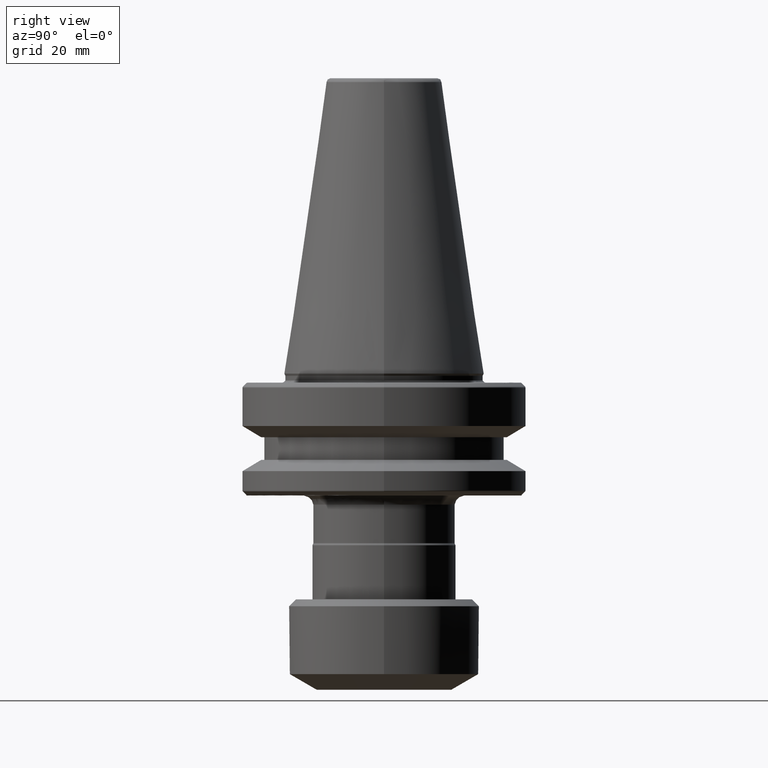
[diagram: clean part render]
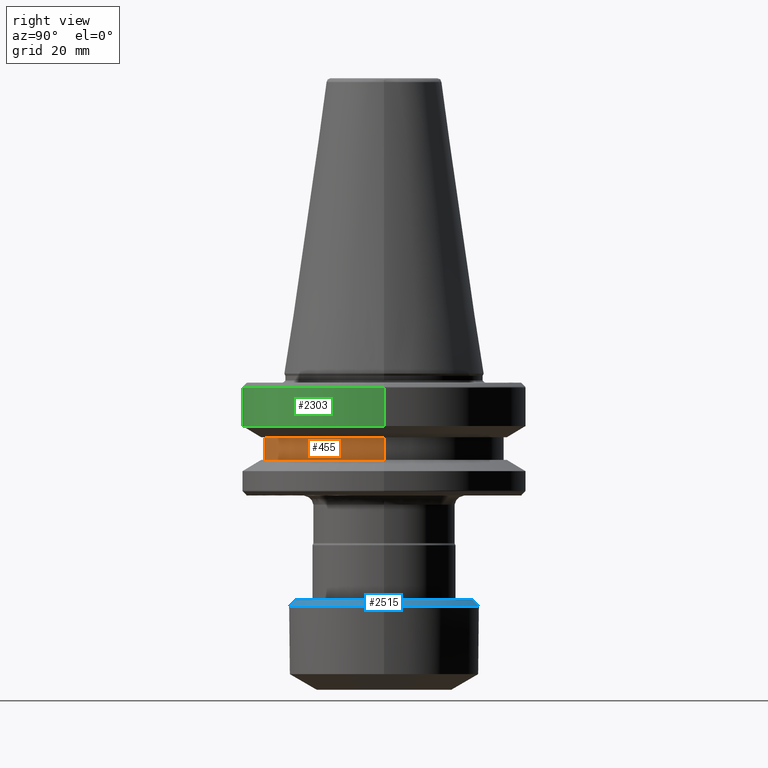
[diagram: same view with three faces highlighted in distinct colors, each labeled with its STEP entity id]
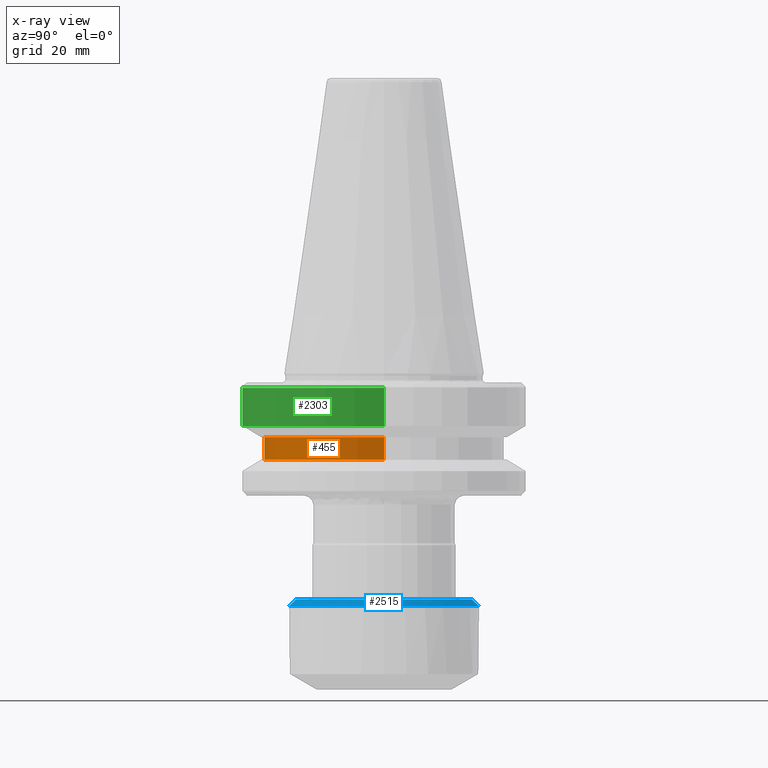
[diagram: x-ray of the same camera — body ghosted, the three highlighted faces saturated]
A machine part, right view with three faces highlighted in distinct colors.
The next image is the same camera in x-ray (body ghosted, the three faces saturated) — at least one of them is partly hidden behind the body in this view.
Their STEP definitions:

[orange] entity #455 — the highlighted cylindrical surface (partial cylindrical patch) has radius 26.5 mm, axis along (0, 0, 1).
#10 = VECTOR ( 'NONE', #2133, 1000.000000000000000 ) ;
#24 = LINE ( 'NONE', #2121, #10 ) ;
#88 = VERTEX_POINT ( 'NONE', #2228 ) ;
#127 = DIRECTION ( 'NONE',  ( 0.0000000000000000000, 0.0000000000000000000, 1.000000000000000000 ) ) ;
#157 = DIRECTION ( 'NONE',  ( 1.000000000000000000, 0.0000000000000000000, 0.0000000000000000000 ) ) ;
#173 = CIRCLE ( 'NONE', #371, 26.49999999999999600 ) ;
#371 = AXIS2_PLACEMENT_3D ( 'NONE', #1341, #2650, #1519 ) ;
#374 = VECTOR ( 'NONE', #2555, 1000.000000000000000 ) ;
#392 = LINE ( 'NONE', #1437, #374 ) ;
#455 = ADVANCED_FACE ( 'NONE', ( #662 ), #667, .T. ) ;
#662 = FACE_OUTER_BOUND ( 'NONE', #1276, .T. ) ;
#667 = CYLINDRICAL_SURFACE ( 'NONE', #1314, 26.49999999999999600 ) ;
#716 = DIRECTION ( 'NONE',  ( 0.0000000000000000000, 0.0000000000000000000, 1.000000000000000000 ) ) ;
#1056 = ORIENTED_EDGE ( 'NONE', *, *, #2558, .F. ) ;
#1143 = ORIENTED_EDGE ( 'NONE', *, *, #2682, .F. ) ;
#1162 = CARTESIAN_POINT ( 'NONE',  ( 88.23341380625029700, 81.23534176582239800, 52.96793828204410200 ) ) ;
#1209 = CARTESIAN_POINT ( 'NONE',  ( 88.23341380625029700, 81.23534176582239800, 47.96793828204409500 ) ) ;
#1210 = VERTEX_POINT ( 'NONE', #1209 ) ;
#1276 = EDGE_LOOP ( 'NONE', ( #1056, #2479, #1635, #1143 ) ) ;
#1314 = AXIS2_PLACEMENT_3D ( 'NONE', #1622, #127, #157 ) ;
#1341 = CARTESIAN_POINT ( 'NONE',  ( 61.73341380625030400, 81.23534176582239800, 47.96793828204409500 ) ) ;
#1437 = CARTESIAN_POINT ( 'NONE',  ( 88.23341380625029700, 81.23534176582239800, 47.96793828204409500 ) ) ;
#1468 = CARTESIAN_POINT ( 'NONE',  ( 35.23341380625029700, 81.23534176582239800, 52.96793828204410200 ) ) ;
#1519 = DIRECTION ( 'NONE',  ( 1.000000000000000000, 0.0000000000000000000, 0.0000000000000000000 ) ) ;
#1589 = VERTEX_POINT ( 'NONE', #1468 ) ;
#1608 = EDGE_CURVE ( 'NONE', #1210, #2533, #392, .T. ) ;
#1622 = CARTESIAN_POINT ( 'NONE',  ( 61.73341380625030400, 81.23534176582239800, 47.96793828204409500 ) ) ;
#1635 = ORIENTED_EDGE ( 'NONE', *, *, #1608, .T. ) ;
#1830 = CIRCLE ( 'NONE', #2306, 26.49999999999999600 ) ;
#1966 = CARTESIAN_POINT ( 'NONE',  ( 61.73341380625030400, 81.23534176582239800, 52.96793828204410200 ) ) ;
#2121 = CARTESIAN_POINT ( 'NONE',  ( 35.23341380625030400, 81.23534176582239800, 47.96793828204409500 ) ) ;
#2133 = DIRECTION ( 'NONE',  ( 0.0000000000000000000, 0.0000000000000000000, 1.000000000000000000 ) ) ;
#2153 = DIRECTION ( 'NONE',  ( 1.000000000000000000, 0.0000000000000000000, 0.0000000000000000000 ) ) ;
#2193 = EDGE_CURVE ( 'NONE', #1210, #88, #173, .T. ) ;
#2228 = CARTESIAN_POINT ( 'NONE',  ( 35.23341380625029700, 81.23534176582239800, 47.96793828204409500 ) ) ;
#2306 = AXIS2_PLACEMENT_3D ( 'NONE', #1966, #716, #2153 ) ;
#2479 = ORIENTED_EDGE ( 'NONE', *, *, #2193, .F. ) ;
#2533 = VERTEX_POINT ( 'NONE', #1162 ) ;
#2555 = DIRECTION ( 'NONE',  ( 0.0000000000000000000, 0.0000000000000000000, 1.000000000000000000 ) ) ;
#2558 = EDGE_CURVE ( 'NONE', #88, #1589, #24, .T. ) ;
#2650 = DIRECTION ( 'NONE',  ( -0.0000000000000000000, -0.0000000000000000000, -1.000000000000000000 ) ) ;
#2682 = EDGE_CURVE ( 'NONE', #1589, #2533, #1830, .T. ) ;

[blue] entity #2515 — the highlighted conical surface has half-angle 45 deg.
#16 = CONICAL_SURFACE ( 'NONE', #1142, 19.50000000000000400, 0.7853981633974488300 ) ;
#37 = EDGE_CURVE ( 'NONE', #2685, #1561, #1687, .T. ) ;
#41 = FACE_OUTER_BOUND ( 'NONE', #826, .T. ) ;
#42 = CARTESIAN_POINT ( 'NONE',  ( 61.73341380625030400, 81.23534176582239800, 15.56793828204414100 ) ) ;
#68 = CIRCLE ( 'NONE', #154, 20.99999999999998900 ) ;
#142 = DIRECTION ( 'NONE',  ( 0.0000000000000000000, 0.0000000000000000000, 1.000000000000000000 ) ) ;
#154 = AXIS2_PLACEMENT_3D ( 'NONE', #1507, #142, #1720 ) ;
#171 = CARTESIAN_POINT ( 'NONE',  ( 61.73341380625030400, 81.23534176582239800, 17.06793828204413900 ) ) ;
#197 = DIRECTION ( 'NONE',  ( 0.0000000000000000000, 0.7071067811865479100, -0.7071067811865471300 ) ) ;
#291 = VECTOR ( 'NONE', #197, 1000.000000000000000 ) ;
#296 = LINE ( 'NONE', #1571, #291 ) ;
#334 = LINE ( 'NONE', #1700, #360 ) ;
#350 = AXIS2_PLACEMENT_3D ( 'NONE', #807, #560, #635 ) ;
#358 = DIRECTION ( 'NONE',  ( 8.659560562354937800E-017, -0.7071067811865479100, -0.7071067811865471300 ) ) ;
#360 = VECTOR ( 'NONE', #358, 1000.000000000000000 ) ;
#385 = EDGE_CURVE ( 'NONE', #776, #1526, #698, .T. ) ;
#560 = DIRECTION ( 'NONE',  ( -0.0000000000000000000, 4.448008912761044100E-017, 1.000000000000000000 ) ) ;
#635 = DIRECTION ( 'NONE',  ( 0.0000000000000000000, 1.000000000000000000, 0.0000000000000000000 ) ) ;
#698 = CIRCLE ( 'NONE', #350, 19.49999999999998900 ) ;
#776 = VERTEX_POINT ( 'NONE', #1536 ) ;
#803 = VERTEX_POINT ( 'NONE', #1148 ) ;
#807 = CARTESIAN_POINT ( 'NONE',  ( 61.73341380625030400, 81.23534176582239800, 17.06793828204414600 ) ) ;
#826 = EDGE_LOOP ( 'NONE', ( #2488, #929, #2050, #2421, #1028 ) ) ;
#929 = ORIENTED_EDGE ( 'NONE', *, *, #1764, .T. ) ;
#1028 = ORIENTED_EDGE ( 'NONE', *, *, #1857, .F. ) ;
#1142 = AXIS2_PLACEMENT_3D ( 'NONE', #171, #1542, #2469 ) ;
#1148 = CARTESIAN_POINT ( 'NONE',  ( 61.73341380625030400, 60.23534176582239000, 15.56793828204414100 ) ) ;
#1370 = CARTESIAN_POINT ( 'NONE',  ( 61.73341380625030400, 100.7353417658223800, 17.06793828204414600 ) ) ;
#1507 = CARTESIAN_POINT ( 'NONE',  ( 61.73341380625030400, 81.23534176582239800, 15.56793828204414100 ) ) ;
#1526 = VERTEX_POINT ( 'NONE', #1370 ) ;
#1536 = CARTESIAN_POINT ( 'NONE',  ( 61.73341380625030400, 61.73534176582240500, 17.06793828204414600 ) ) ;
#1542 = DIRECTION ( 'NONE',  ( 0.0000000000000000000, -4.448008912761044100E-017, -1.000000000000000000 ) ) ;
#1561 = VERTEX_POINT ( 'NONE', #1646 ) ;
#1571 = CARTESIAN_POINT ( 'NONE',  ( 61.73341380625030400, 100.7353417658224000, 17.06793828204413900 ) ) ;
#1583 = AXIS2_PLACEMENT_3D ( 'NONE', #42, #2408, #1825 ) ;
#1646 = CARTESIAN_POINT ( 'NONE',  ( 61.73341380625030400, 102.2353417658224000, 15.56793828204414100 ) ) ;
#1687 = CIRCLE ( 'NONE', #1583, 20.99999999999998900 ) ;
#1700 = CARTESIAN_POINT ( 'NONE',  ( 61.73341380625030400, 61.73534176582239000, 17.06793828204413900 ) ) ;
#1720 = DIRECTION ( 'NONE',  ( 1.000000000000000000, 0.0000000000000000000, 0.0000000000000000000 ) ) ;
#1764 = EDGE_CURVE ( 'NONE', #776, #803, #334, .T. ) ;
#1779 = CARTESIAN_POINT ( 'NONE',  ( 82.73341380625031100, 81.23534176582239800, 15.56793828204414100 ) ) ;
#1825 = DIRECTION ( 'NONE',  ( 1.000000000000000000, 0.0000000000000000000, 0.0000000000000000000 ) ) ;
#1857 = EDGE_CURVE ( 'NONE', #1526, #1561, #296, .T. ) ;
#2050 = ORIENTED_EDGE ( 'NONE', *, *, #2491, .T. ) ;
#2408 = DIRECTION ( 'NONE',  ( 0.0000000000000000000, 0.0000000000000000000, 1.000000000000000000 ) ) ;
#2421 = ORIENTED_EDGE ( 'NONE', *, *, #37, .T. ) ;
#2469 = DIRECTION ( 'NONE',  ( 0.0000000000000000000, 1.000000000000000000, 0.0000000000000000000 ) ) ;
#2488 = ORIENTED_EDGE ( 'NONE', *, *, #385, .F. ) ;
#2491 = EDGE_CURVE ( 'NONE', #803, #2685, #68, .T. ) ;
#2515 = ADVANCED_FACE ( 'NONE', ( #41 ), #16, .T. ) ;
#2685 = VERTEX_POINT ( 'NONE', #1779 ) ;

[green] entity #2303 — the highlighted cylindrical surface (partial cylindrical patch) has radius 31.5 mm, axis along (-0, 0, 1).
#13 = VECTOR ( 'NONE', #922, 1000.000000000000000 ) ;
#35 = LINE ( 'NONE', #1948, #13 ) ;
#123 = CIRCLE ( 'NONE', #1977, 31.50000000000000000 ) ;
#131 = DIRECTION ( 'NONE',  ( -2.753529326947312600E-017, 0.0000000000000000000, 1.000000000000000000 ) ) ;
#135 = CYLINDRICAL_SURFACE ( 'NONE', #1454, 31.50000000000000000 ) ;
#146 = FACE_OUTER_BOUND ( 'NONE', #1048, .T. ) ;
#165 = VECTOR ( 'NONE', #396, 1000.000000000000000 ) ;
#166 = LINE ( 'NONE', #1731, #165 ) ;
#396 = DIRECTION ( 'NONE',  ( -2.753529326947312600E-017, 0.0000000000000000000, 1.000000000000000000 ) ) ;
#596 = CIRCLE ( 'NONE', #1838, 31.50000000000000000 ) ;
#703 = EDGE_CURVE ( 'NONE', #1213, #2614, #596, .T. ) ;
#814 = CARTESIAN_POINT ( 'NONE',  ( 30.23341380625761600, 81.23534176582239800, 63.90225285604410000 ) ) ;
#922 = DIRECTION ( 'NONE',  ( -2.753529326947312600E-017, 0.0000000000000000000, 1.000000000000000000 ) ) ;
#1048 = EDGE_LOOP ( 'NONE', ( #2502, #1051, #1796, #2175 ) ) ;
#1051 = ORIENTED_EDGE ( 'NONE', *, *, #703, .T. ) ;
#1145 = CARTESIAN_POINT ( 'NONE',  ( 93.23341380624299300, 81.23534176582239800, 63.90225285604410000 ) ) ;
#1197 = CARTESIAN_POINT ( 'NONE',  ( 30.23341380625030400, 81.23534176582239800, 55.46390148157179600 ) ) ;
#1213 = VERTEX_POINT ( 'NONE', #1197 ) ;
#1387 = DIRECTION ( 'NONE',  ( 1.000000000000000000, 0.0000000000000000000, 0.0000000000000000000 ) ) ;
#1454 = AXIS2_PLACEMENT_3D ( 'NONE', #2698, #1588, #1387 ) ;
#1498 = CARTESIAN_POINT ( 'NONE',  ( 61.73341380625030400, 81.23534176582239800, 63.90225285604410000 ) ) ;
#1565 = CARTESIAN_POINT ( 'NONE',  ( 93.23341380625029700, 81.23534176582239800, 55.46390148157179600 ) ) ;
#1588 = DIRECTION ( 'NONE',  ( -2.753529326947312600E-017, 0.0000000000000000000, 1.000000000000000000 ) ) ;
#1710 = DIRECTION ( 'NONE',  ( 1.000000000000000000, 0.0000000000000000000, 0.0000000000000000000 ) ) ;
#1731 = CARTESIAN_POINT ( 'NONE',  ( 30.23341380625030400, 81.23534176582239800, 55.46808028804410600 ) ) ;
#1771 = DIRECTION ( 'NONE',  ( 1.000000000000000000, 0.0000000000000000000, 0.0000000000000000000 ) ) ;
#1796 = ORIENTED_EDGE ( 'NONE', *, *, #2565, .T. ) ;
#1826 = VERTEX_POINT ( 'NONE', #1145 ) ;
#1838 = AXIS2_PLACEMENT_3D ( 'NONE', #2204, #2269, #1771 ) ;
#1948 = CARTESIAN_POINT ( 'NONE',  ( 93.23341380625029700, 81.23534176582239800, 55.46808028804410600 ) ) ;
#1977 = AXIS2_PLACEMENT_3D ( 'NONE', #1498, #131, #1710 ) ;
#1990 = VERTEX_POINT ( 'NONE', #814 ) ;
#2175 = ORIENTED_EDGE ( 'NONE', *, *, #2380, .F. ) ;
#2204 = CARTESIAN_POINT ( 'NONE',  ( 61.73341380625030400, 81.23534176582239800, 55.46390148157179600 ) ) ;
#2218 = EDGE_CURVE ( 'NONE', #1213, #1990, #166, .T. ) ;
#2269 = DIRECTION ( 'NONE',  ( -0.0000000000000000000, -0.0000000000000000000, 1.000000000000000000 ) ) ;
#2303 = ADVANCED_FACE ( 'NONE', ( #146 ), #135, .T. ) ;
#2380 = EDGE_CURVE ( 'NONE', #1990, #1826, #123, .T. ) ;
#2502 = ORIENTED_EDGE ( 'NONE', *, *, #2218, .F. ) ;
#2565 = EDGE_CURVE ( 'NONE', #2614, #1826, #35, .T. ) ;
#2614 = VERTEX_POINT ( 'NONE', #1565 ) ;
#2698 = CARTESIAN_POINT ( 'NONE',  ( 61.73341380625030400, 81.23534176582239800, 55.46808028804410600 ) ) ;